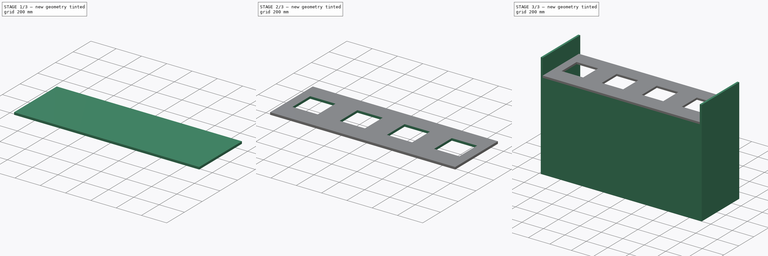
[diagram: build sequence overview — one tinted view per stage of 3, left to right]
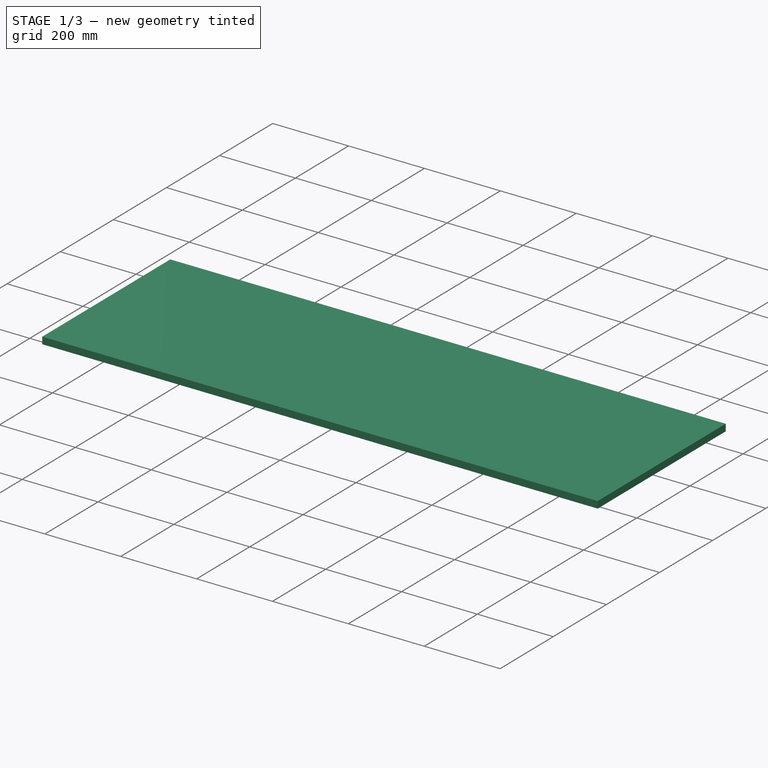
[diagram: stage 1 of 3 — iso view after this stage's code; geometry added in this stage tinted green]
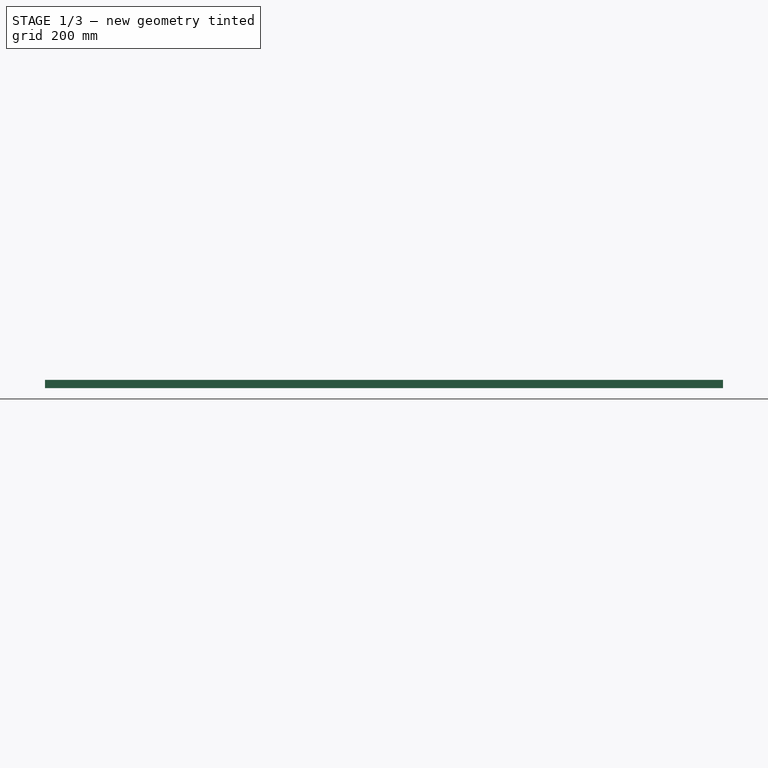
[diagram: stage 1 of 3 — front view after this stage's code; geometry added in this stage tinted green]
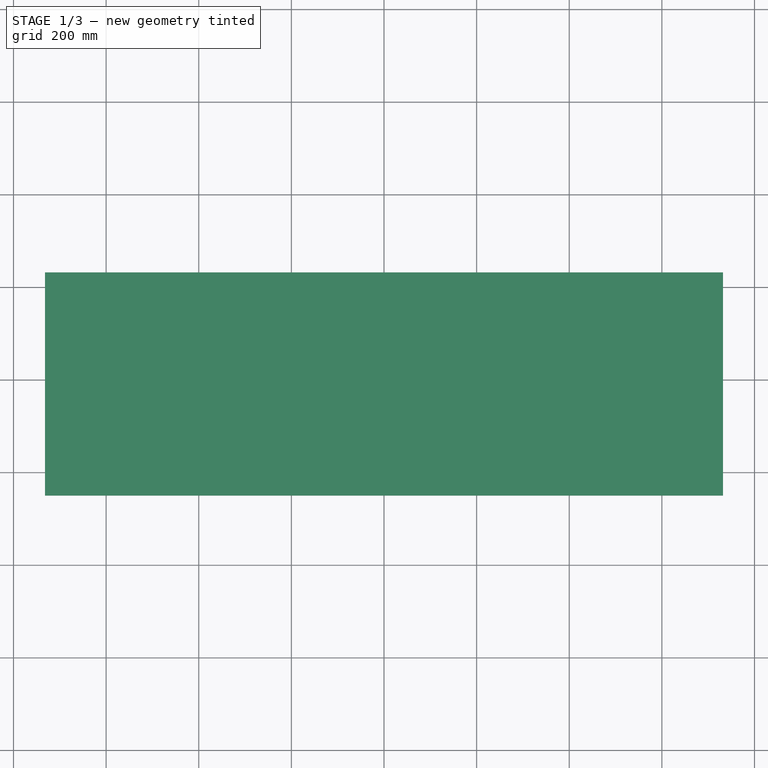
[diagram: stage 1 of 3 — top view after this stage's code; geometry added in this stage tinted green]
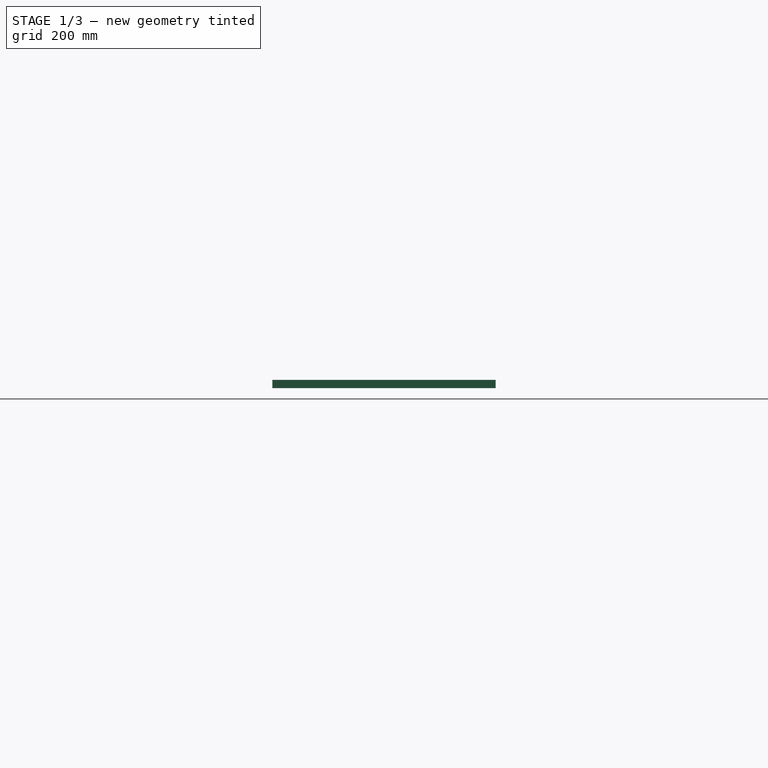
[diagram: stage 1 of 3 — right view after this stage's code; geometry added in this stage tinted green]
FCSTD DOCUMENT  (FreeCAD 0.17R13543 (Git))
Label: Tonne
License: All rights reserved
LicenseURL: http://en.wikipedia.org/wiki/All_rights_reserved
objects: Sketcher::SketchObject×7, PartDesign::Pad×6, PartDesign::Body×6, PartDesign::ShapeBinder×5, Spreadsheet::Sheet×1, PartDesign::Pocket×1, PartDesign::LinearPattern×1, PartDesign::MultiTransform×1
note: 34 computed .brp shape members not serialized (recipe doc carries the construction recipe); baked Part::Feature solids carry a one-line shape summary decoded from their .brp

FEATURE [Sketcher::SketchObject] Sketch
  MapMode = 5
  Support = -> [XY_Plane]
  expr: Constraints[10] = S.Tiefe
  expr: Constraints[9] = S.Breite
  sketch-geometry (4):
    g0: LineSegment StartX=-750 StartY=250 StartZ=0 EndX=750 EndY=250 EndZ=0
    g1: LineSegment StartX=750 StartY=250 StartZ=0 EndX=750 EndY=-250 EndZ=0
    g2: LineSegment StartX=750 StartY=-250 StartZ=0 EndX=-750 EndY=-250 EndZ=0
    g3: LineSegment StartX=-750 StartY=-250 StartZ=0 EndX=-750 EndY=250 EndZ=0
  constraints (11):
    c: Coincident(g0,g1)
    c: Coincident(g1,g2)
    c: Coincident(g2,g3)
    c: Coincident(g3,g0)
    c: Horizontal(g0)
    c: Horizontal(g2)
    c: Vertical(g1)
    c: Vertical(g3)
    c: Symmetric(g1,g0,g-1)
    c: Distance(g0) = 1500
    c: Distance(g1) = 500
FEATURE [Spreadsheet::Sheet] Spreadsheet  label="S"
  cells = A1=Höhe:; B1(Hoehe)=1000; A2=Breite:; B2(Breite)=1500; A3=Tiefe:; B3(Tiefe)=500; A4=Materialdicke:; B4(Materialdicke)=18; A5=HöheZwischenboden; B5(HoeheZwischenboden)=150; A6=Loch; B6(Loch)=200
FEATURE [PartDesign::Pad] Pad
  Length = 18
  Length2 = 100
  Profile = -> Sketch
  Type = 0
  expr: Length = S.Materialdicke
FEATURE [PartDesign::Body] Body002  label="WandLinks"
  Group = -> [ShapeBinder001,Sketch002,Pad002]
  Origin = -> Origin002
  Tip = -> Pad002
FEATURE [PartDesign::ShapeBinder] ShapeBinder002
  Placement = pos=(0,0,18) rot=(0,0,1;0rad)
  Support = -> [Pad]
FEATURE [Sketcher::SketchObject] Sketch003
  ExternalGeometry = -> [ShapeBinder002]
  MapMode = 5
  Placement = pos=(0,0,18) rot=(0,0,1;0rad)
  Support = -> [ShapeBinder002]
  expr: Constraints[11] = S.Materialdicke
  expr: Constraints[10] = S.Breite - 2 * S.Materialdicke
  sketch-geometry (4):
    g0: LineSegment StartX=-732 StartY=250 StartZ=0 EndX=732 EndY=250 EndZ=0
    g1: LineSegment StartX=732 StartY=250 StartZ=0 EndX=732 EndY=232 EndZ=0
    g2: LineSegment StartX=732 StartY=232 StartZ=0 EndX=-732 EndY=232 EndZ=0
    g3: LineSegment StartX=-732 StartY=232 StartZ=0 EndX=-732 EndY=250 EndZ=0
  constraints (12):
    c: Coincident(g0,g1)
    c: Coincident(g1,g2)
    c: Coincident(g2,g3)
    c: Coincident(g3,g0)
    c: Horizontal(g0)
    c: Horizontal(g2)
    c: Vertical(g1)
    c: Vertical(g3)
    c: PointOnObject(g0,g-3)
    c: Symmetric(g0,g0,g-2)
    c: Distance(g0) = 1464
    c: Distance(g3) = 18
FEATURE [PartDesign::Pad] Pad003
  Length = 982
  Length2 = 100
  Placement = pos=(0,0,18) rot=(0,0,1;0rad)
  Profile = -> Sketch003
  Type = 0
  expr: Length = S.Hoehe - S.Materialdicke
FEATURE [PartDesign::Body] Body004  label="Vorderplatte"
  Group = -> [ShapeBinder003,Sketch004,Pad004]
  Origin = -> Origin004
  Tip = -> Pad004
FEATURE [PartDesign::ShapeBinder] ShapeBinder004
  Placement = pos=(0,0,18) rot=(0,0,1;0rad)
  Support = -> [Pad003]
FEATURE [Sketcher::SketchObject] Sketch005
  ExternalGeometry = -> [ShapeBinder004]
  MapMode = 5
  Placement = pos=(0,232,18) rot=(1,0,0;1.5708rad)
  Support = -> [ShapeBinder004]
  expr: Constraints[11] = S.HoeheZwischenboden
  expr: Constraints[10] = S.Materialdicke
  sketch-geometry (4):
    g0: LineSegment StartX=-732 StartY=832 StartZ=0 EndX=732 EndY=832 EndZ=0
    g1: LineSegment StartX=732 StartY=832 StartZ=0 EndX=732 EndY=814 EndZ=0
    g2: LineSegment StartX=732 StartY=814 StartZ=0 EndX=-732 EndY=814 EndZ=0
    g3: LineSegment StartX=-732 StartY=814 StartZ=0 EndX=-732 EndY=832 EndZ=0
  constraints (12):
    c: Coincident(g0,g1)
    c: Coincident(g1,g2)
    c: Coincident(g2,g3)
    c: Coincident(g3,g0)
    c: Horizontal(g0)
    c: Horizontal(g2)
    c: Vertical(g1)
    c: Vertical(g3)
    c: PointOnObject(g0,g-3)
    c: PointOnObject(g1,g-4)
    c: Distance(g1) = 18
    c: Distance(g0,g-3) = 150
FEATURE [PartDesign::Pad] Pad005
  Length = 482
  Length2 = 100
  Placement = pos=(0,0,18) rot=(0,0,1;0rad)
  Profile = -> Sketch005
  Type = 0
  expr: Length = S.Tiefe - S.Materialdicke
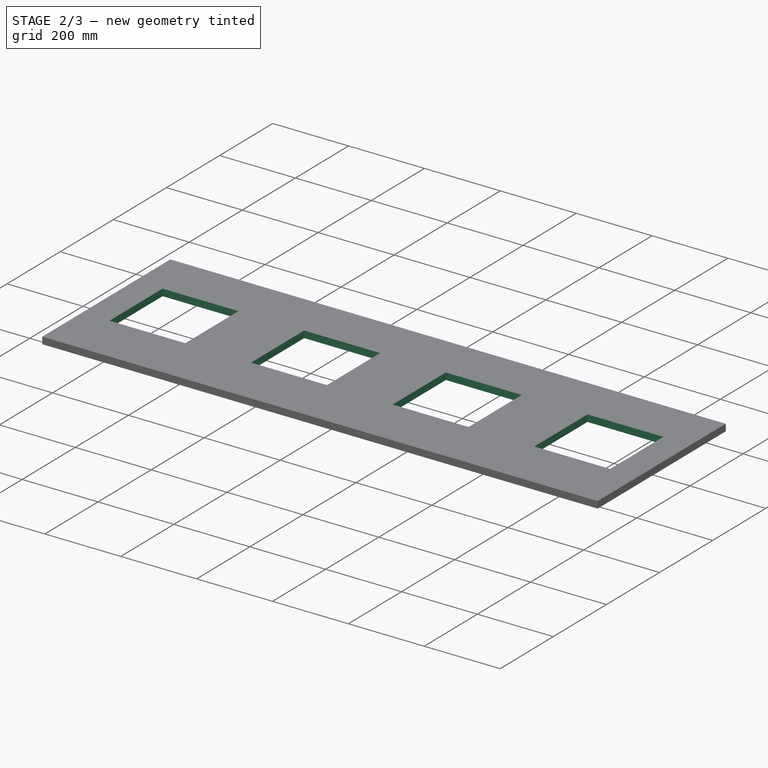
[diagram: stage 2 of 3 — iso view after this stage's code; geometry added in this stage tinted green]
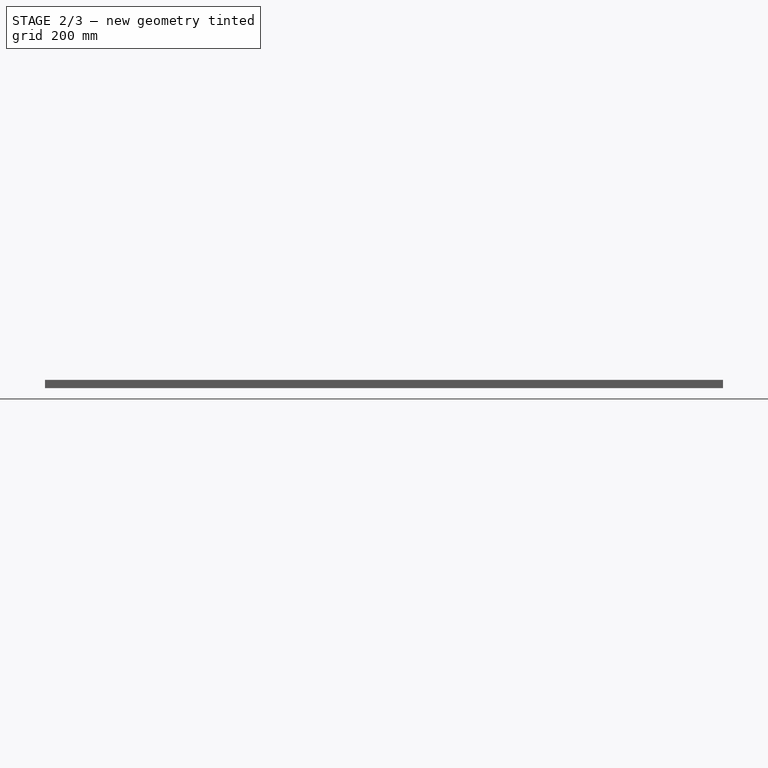
[diagram: stage 2 of 3 — front view after this stage's code; geometry added in this stage tinted green]
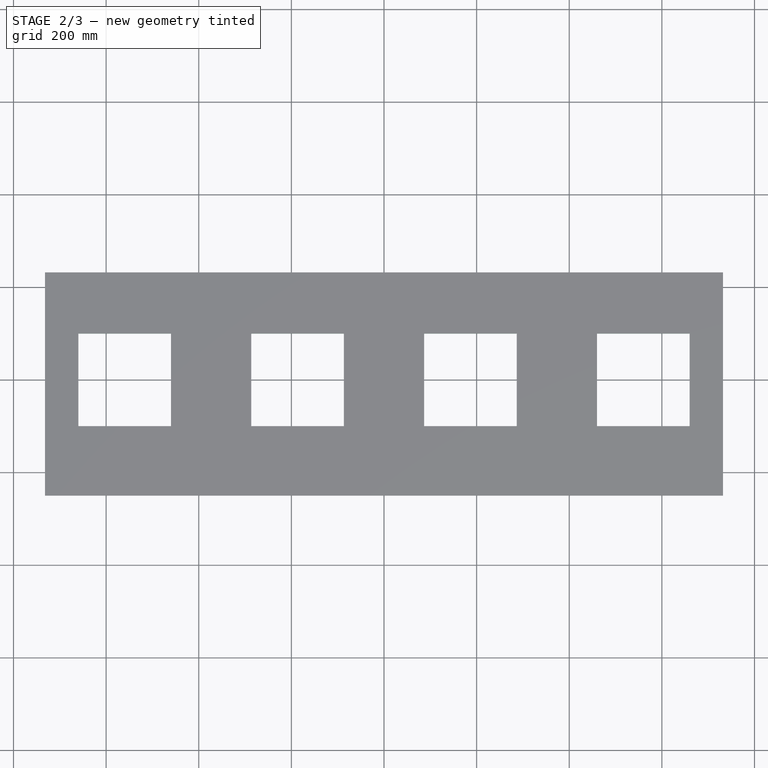
[diagram: stage 2 of 3 — top view after this stage's code; geometry added in this stage tinted green]
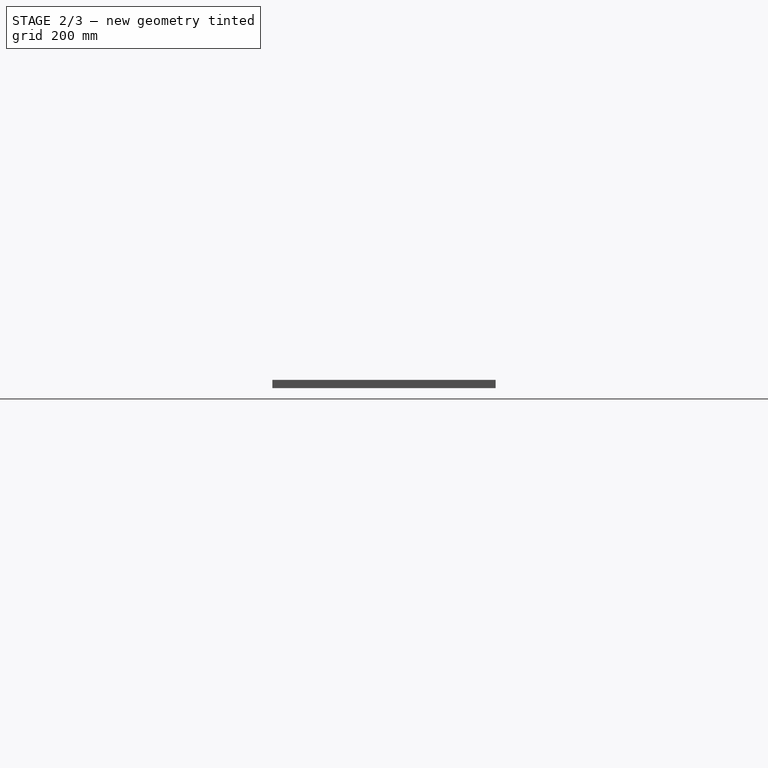
[diagram: stage 2 of 3 — right view after this stage's code; geometry added in this stage tinted green]
FEATURE [Sketcher::SketchObject] Sketch006
  MapMode = 5
  Placement = pos=(0,0,850) rot=(0,0,1;0rad)
  Support = -> [Pad005]
  expr: Constraints[11] = S.Breite / 2 - S.Materialdicke * 5 - S.Loch
  expr: Constraints[10] = S.Loch
  sketch-geometry (4):
    g0: LineSegment StartX=-660 StartY=100 StartZ=0 EndX=-460 EndY=100 EndZ=0
    g1: LineSegment StartX=-460 StartY=100 StartZ=0 EndX=-460 EndY=-100 EndZ=0
    g2: LineSegment StartX=-460 StartY=-100 StartZ=0 EndX=-660 EndY=-100 EndZ=0
    g3: LineSegment StartX=-660 StartY=-100 StartZ=0 EndX=-660 EndY=100 EndZ=0
  constraints (12):
    c: Coincident(g0,g1)
    c: Coincident(g1,g2)
    c: Coincident(g2,g3)
    c: Coincident(g3,g0)
    c: Horizontal(g0)
    c: Horizontal(g2)
    c: Vertical(g1)
    c: Vertical(g3)
    c: Equal(g1,g2)
    c: Symmetric(g0,g1,g-1)
    c: Distance(g0) = 200
    c: DistanceX(g0,g-1) = 460
FEATURE [PartDesign::Pocket] Pocket
  BaseFeature = -> Pad005
  Length = 5
  Length2 = 100
  Placement = pos=(0,0,18) rot=(0,0,1;0rad)
  Profile = -> Sketch006
  Type = 1
FEATURE [PartDesign::LinearPattern] LinearPattern
  Direction = -> Sketch006 [H_Axis]
  Length = 1120
  Occurrences = 4
  Placement = pos=(0,0,18) rot=(0,0,1;0rad)
  expr: Length = S.Breite - S.Loch - S.Materialdicke * 10
FEATURE [PartDesign::MultiTransform] MultiTransform
  BaseFeature = -> Pocket
  Originals = -> [Pocket]
  Placement = pos=(0,0,18) rot=(0,0,1;0rad)
  Transformations = -> [LinearPattern]
FEATURE [PartDesign::Body] Body005  label="Zwischenplatte"
  Group = -> [ShapeBinder004,Sketch005,Pad005,Sketch006,Pocket,MultiTransform,LinearPattern]
  Origin = -> Origin005
  Tip = -> MultiTransform
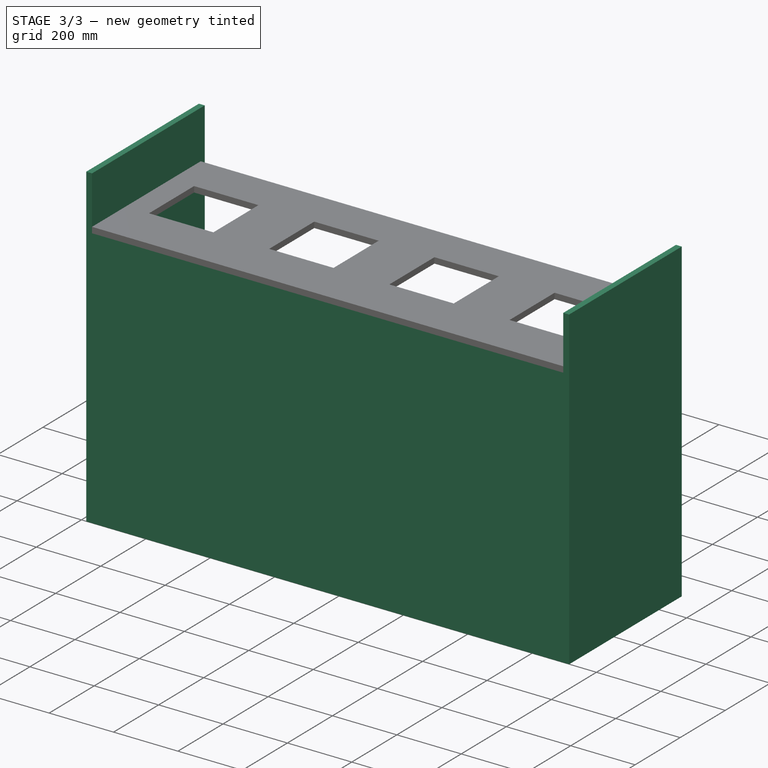
[diagram: stage 3 of 3 — iso view after this stage's code; geometry added in this stage tinted green]
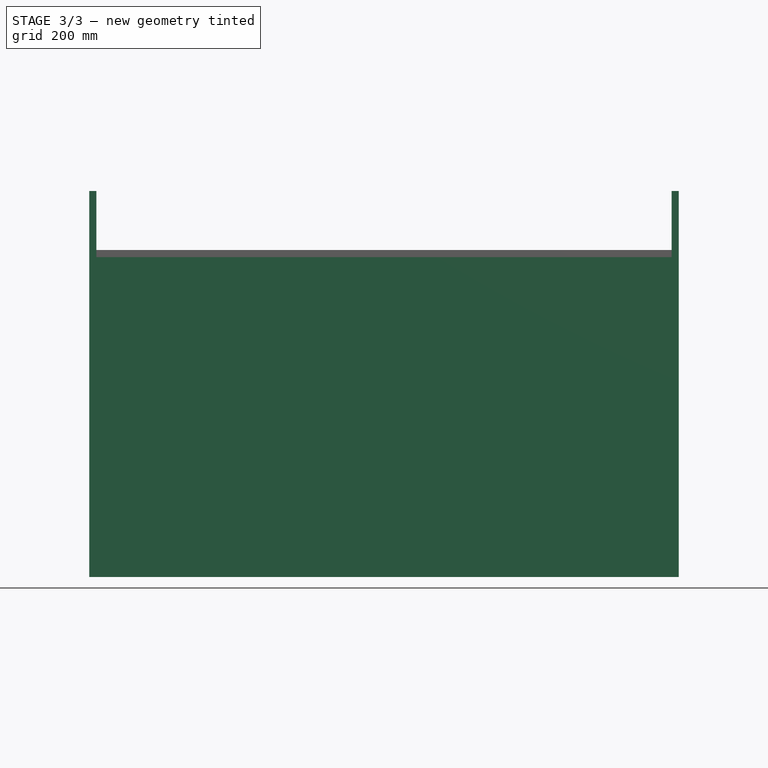
[diagram: stage 3 of 3 — front view after this stage's code; geometry added in this stage tinted green]
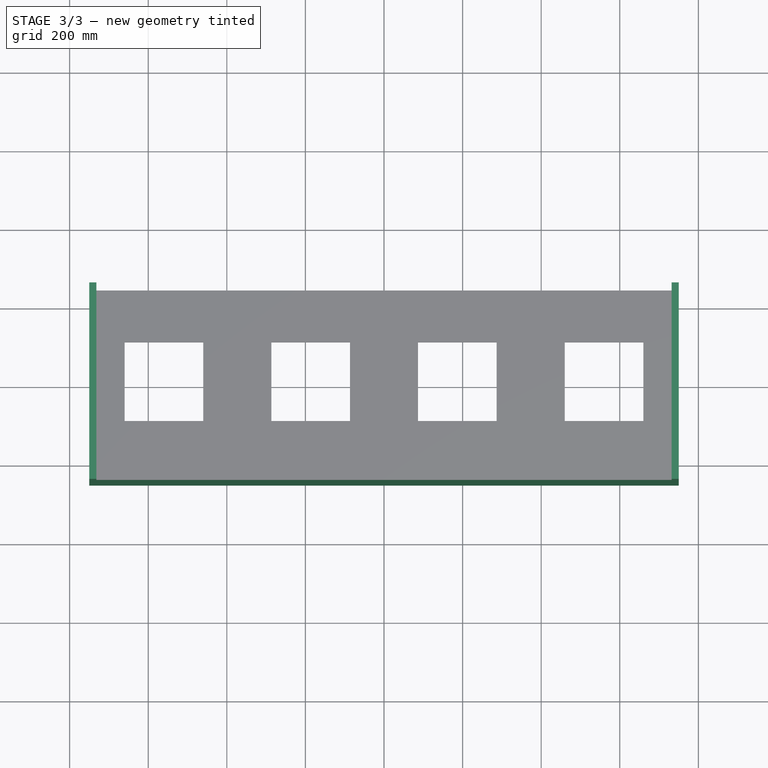
[diagram: stage 3 of 3 — top view after this stage's code; geometry added in this stage tinted green]
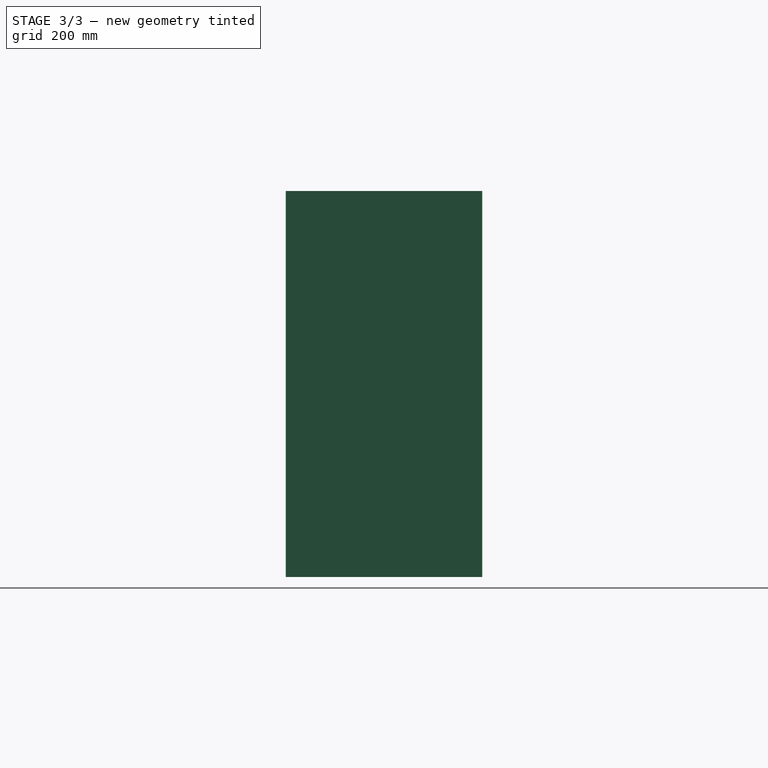
[diagram: stage 3 of 3 — right view after this stage's code; geometry added in this stage tinted green]
FEATURE [PartDesign::Body] Body  label="Boden"
  Group = -> [Sketch,Pad]
  Origin = -> Origin
  Tip = -> Pad
FEATURE [PartDesign::ShapeBinder] ShapeBinder
  Placement = pos=(0,0,18) rot=(0,0,1;0rad)
  Support = -> [Pad]
FEATURE [Sketcher::SketchObject] Sketch001
  ExternalGeometry = -> [ShapeBinder]
  MapMode = 5
  Placement = pos=(0,0,18) rot=(0,0,1;0rad)
  Support = -> [ShapeBinder]
  expr: Constraints[10] = S.Materialdicke
  sketch-geometry (4):
    g0: LineSegment StartX=750 StartY=250 StartZ=0 EndX=732 EndY=250 EndZ=0
    g1: LineSegment StartX=732 StartY=250 StartZ=0 EndX=732 EndY=-250 EndZ=0
    g2: LineSegment StartX=732 StartY=-250 StartZ=0 EndX=750 EndY=-250 EndZ=0
    g3: LineSegment StartX=750 StartY=-250 StartZ=0 EndX=750 EndY=250 EndZ=0
  constraints (11):
    c: Coincident(g0,g1)
    c: Coincident(g1,g2)
    c: Coincident(g2,g3)
    c: Coincident(g3,g0)
    c: Horizontal(g0)
    c: Horizontal(g2)
    c: Vertical(g1)
    c: Vertical(g3)
    c: Coincident(g0,g-3)
    c: Coincident(g2,g-3)
    c: Distance(g0) = 18
FEATURE [PartDesign::Pad] Pad001
  Length = 982
  Length2 = 100
  Placement = pos=(0,0,18) rot=(0,0,1;0rad)
  Profile = -> Sketch001
  Type = 0
  expr: Length = S.Hoehe - S.Materialdicke
FEATURE [PartDesign::Body] Body001  label="WandRechts"
  Group = -> [ShapeBinder,Sketch001,Pad001]
  Origin = -> Origin001
  Tip = -> Pad001
FEATURE [PartDesign::ShapeBinder] ShapeBinder001
  Placement = pos=(0,0,18) rot=(0,0,1;0rad)
  Support = -> [Pad]
FEATURE [Sketcher::SketchObject] Sketch002
  ExternalGeometry = -> [ShapeBinder001]
  MapMode = 5
  Placement = pos=(0,0,18) rot=(0,0,1;0rad)
  Support = -> [ShapeBinder001]
  expr: Constraints[10] = S.Materialdicke
  sketch-geometry (4):
    g0: LineSegment StartX=-750 StartY=250 StartZ=0 EndX=-732 EndY=250 EndZ=0
    g1: LineSegment StartX=-732 StartY=250 StartZ=0 EndX=-732 EndY=-250 EndZ=0
    g2: LineSegment StartX=-732 StartY=-250 StartZ=0 EndX=-750 EndY=-250 EndZ=0
    g3: LineSegment StartX=-750 StartY=-250 StartZ=0 EndX=-750 EndY=250 EndZ=0
  constraints (11):
    c: Coincident(g0,g1)
    c: Coincident(g1,g2)
    c: Coincident(g2,g3)
    c: Coincident(g3,g0)
    c: Horizontal(g0)
    c: Horizontal(g2)
    c: Vertical(g1)
    c: Vertical(g3)
    c: Coincident(g0,g-3)
    c: Coincident(g-3,g2)
    c: Distance(g0) = 18
FEATURE [PartDesign::Pad] Pad002
  Length = 982
  Length2 = 100
  Placement = pos=(0,0,18) rot=(0,0,1;0rad)
  Profile = -> Sketch002
  Type = 0
  expr: Length = S.Hoehe - S.Materialdicke
FEATURE [PartDesign::Body] Body003  label="Rückplatte"
  Group = -> [ShapeBinder002,Sketch003,Pad003]
  Origin = -> Origin003
  Tip = -> Pad003
FEATURE [PartDesign::ShapeBinder] ShapeBinder003
  Placement = pos=(0,0,18) rot=(0,0,1;0rad)
  Support = -> [Pad]
FEATURE [Sketcher::SketchObject] Sketch004
  ExternalGeometry = -> [ShapeBinder003]
  MapMode = 5
  Placement = pos=(0,0,18) rot=(0,0,1;0rad)
  Support = -> [ShapeBinder003]
  expr: Constraints[11] = S.Materialdicke
  expr: Constraints[10] = S.Breite - 2 * S.Materialdicke
  sketch-geometry (4):
    g0: LineSegment StartX=-732 StartY=-250 StartZ=0 EndX=732 EndY=-250 EndZ=0
    g1: LineSegment StartX=732 StartY=-250 StartZ=0 EndX=732 EndY=-232 EndZ=0
    g2: LineSegment StartX=732 StartY=-232 StartZ=0 EndX=-732 EndY=-232 EndZ=0
    g3: LineSegment StartX=-732 StartY=-232 StartZ=0 EndX=-732 EndY=-250 EndZ=0
  constraints (12):
    c: Coincident(g0,g1)
    c: Coincident(g1,g2)
    c: Coincident(g2,g3)
    c: Coincident(g3,g0)
    c: Horizontal(g0)
    c: Horizontal(g2)
    c: Vertical(g1)
    c: Vertical(g3)
    c: PointOnObject(g0,g-3)
    c: Symmetric(g0,g0,g-2)
    c: Distance(g0) = 1464
    c: Distance(g3) = 18
FEATURE [PartDesign::Pad] Pad004
  Length = 814
  Length2 = 100
  Placement = pos=(0,0,18) rot=(0,0,1;0rad)
  Profile = -> Sketch004
  Type = 0
  expr: Length = S.Hoehe - S.HoeheZwischenboden - 2 * S.Materialdicke
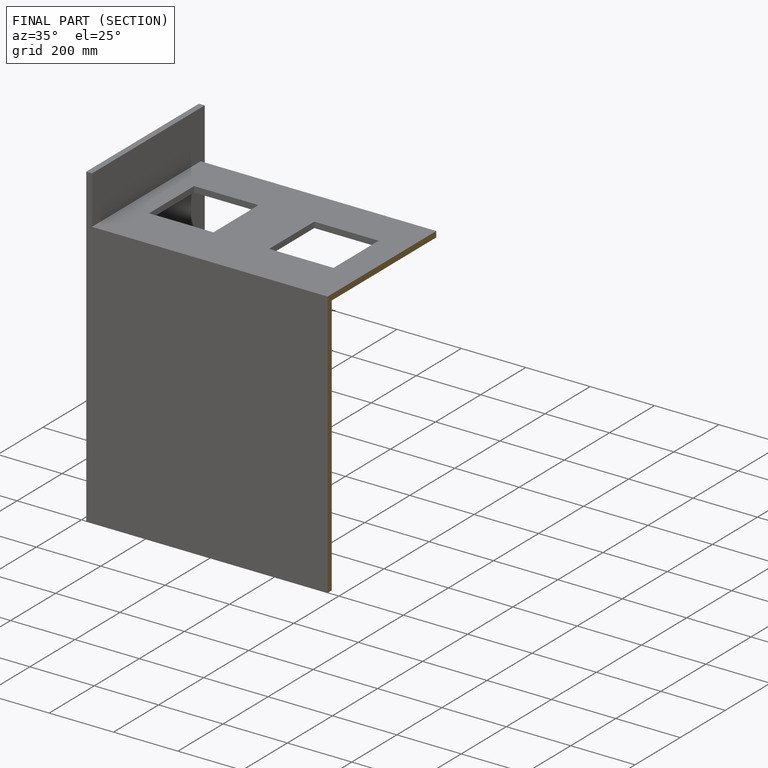
[diagram: finished part — half-section view (interior)]
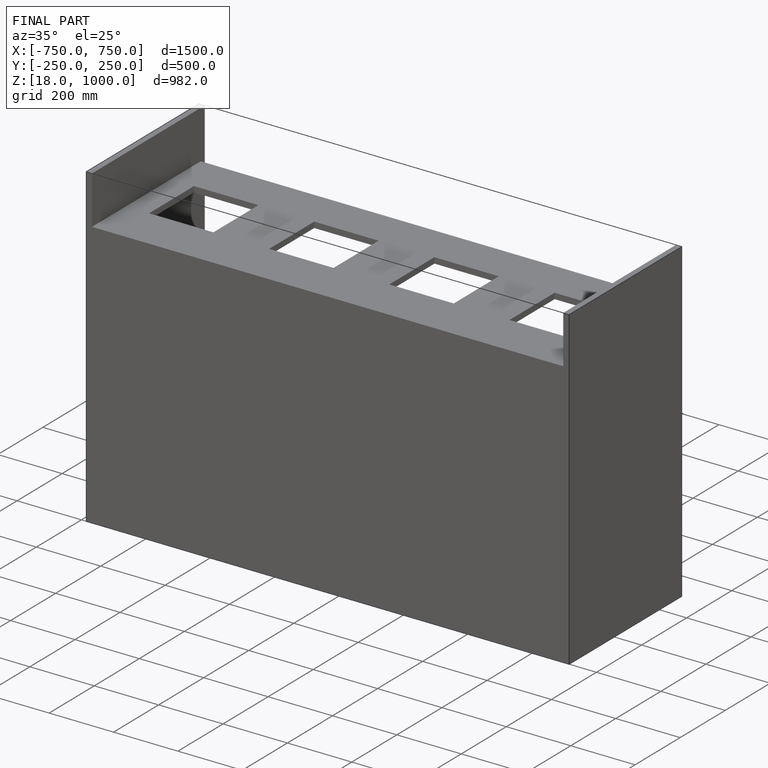
[diagram: finished part — iso view with bounding-box wireframe]
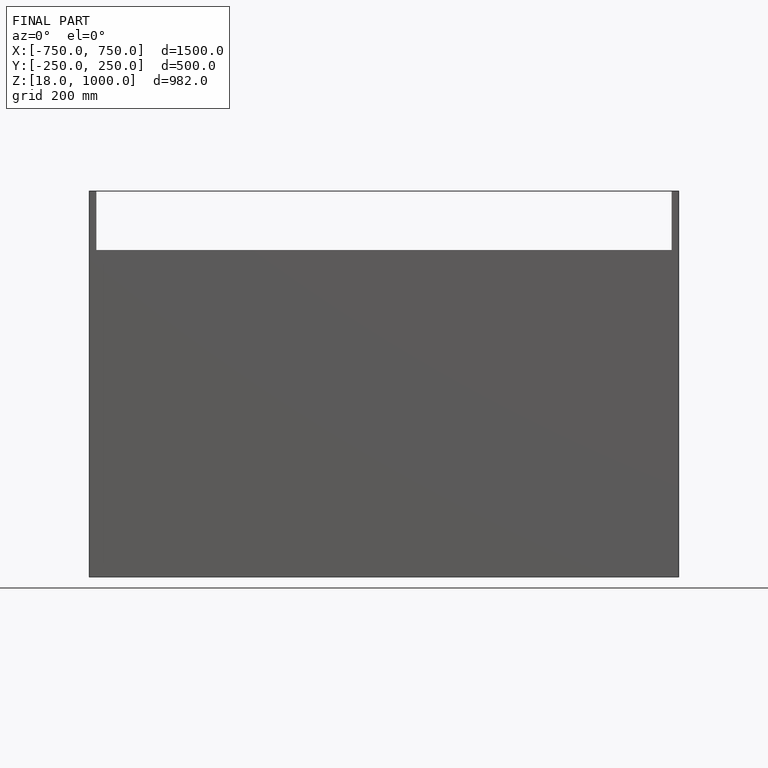
[diagram: finished part — front view with bounding-box wireframe]
